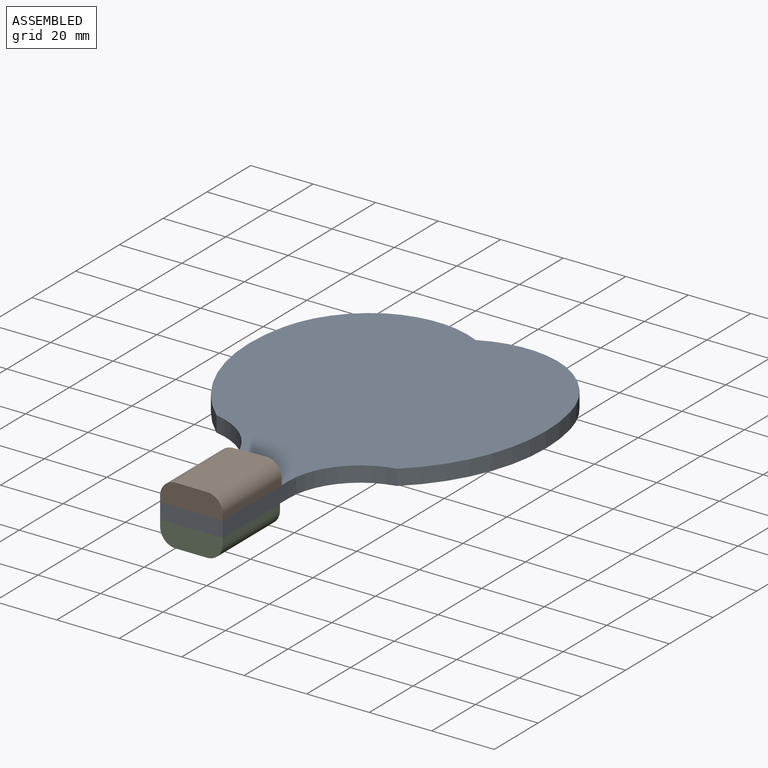
[diagram: assembled view]
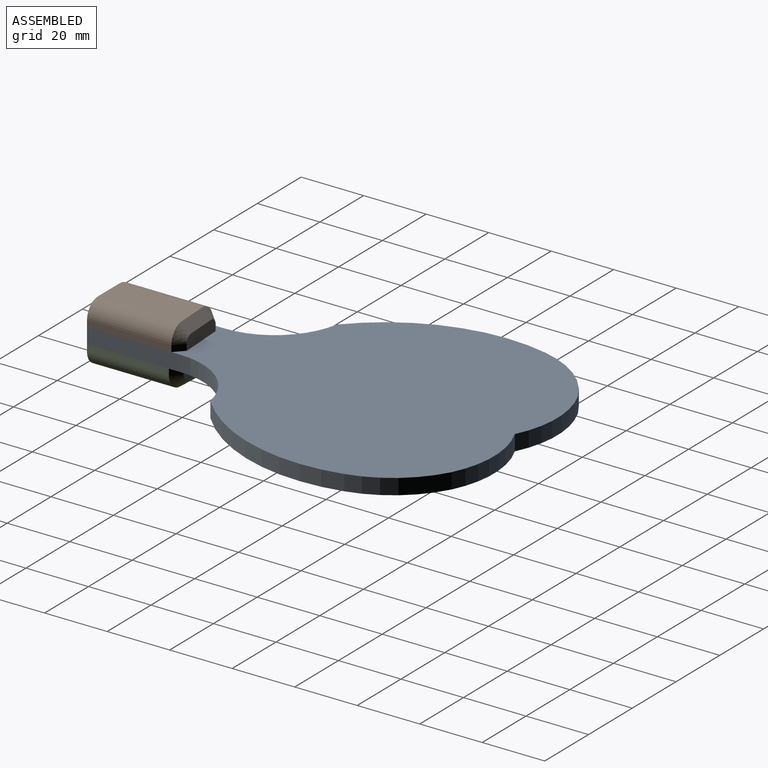
[diagram: assembled view, second angle]
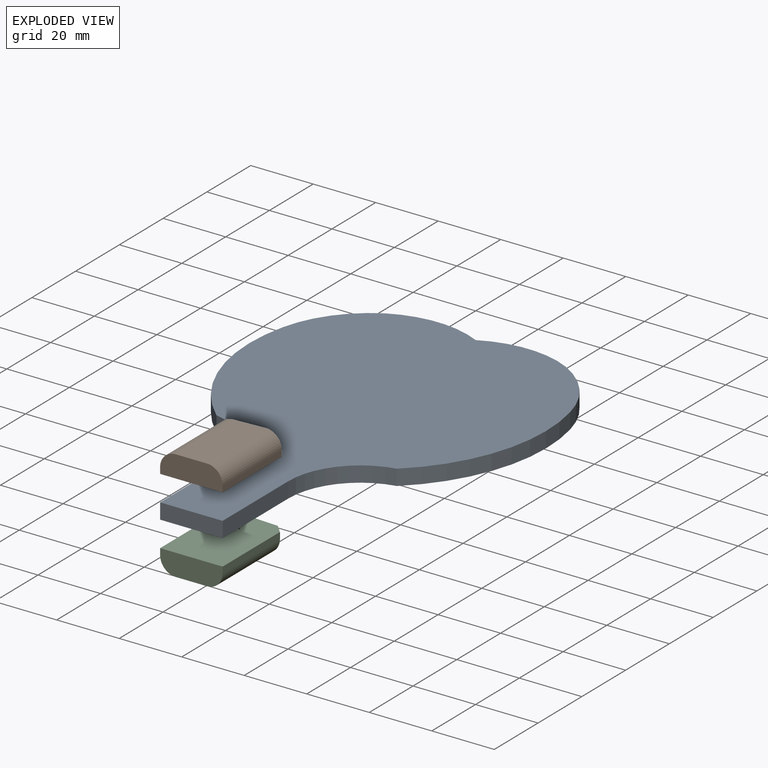
[diagram: exploded view]
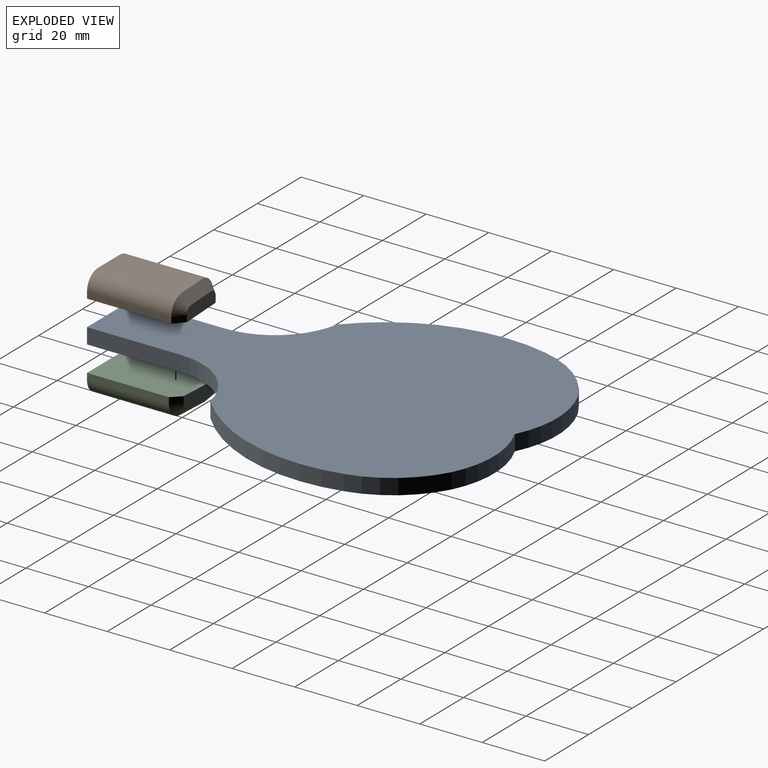
[diagram: exploded view, second angle]
ASSEMBLY  parts=3 mates=2
PART A: 13 faces, bbox 95x133.3x5 mm
  f0: plane 20x5mm, normal (0,-1,0), area 100mm2, adj f1,f10,f11,f12
  f1: plane 30x5mm, normal (1,0,0), area 150mm2, adj f0,f2,f11,f12
  f2: cylinder r=23.08mm len=22.69mm, axis (0,0,-1), area 160.1mm2, adj f1,f3,f11,f12
  f3: cylinder r=55.94mm len=54.78mm, axis (0,0,-1), area 301.3mm2, adj f2,f4,f11,f12
  f4: cylinder r=34.28mm len=22.41mm, axis (0,0,-1), area 145.2mm2, adj f3,f5,f11,f12
  f5: cylinder r=32.01mm len=28.87mm, axis (0,0,-1), area 149.7mm2, adj f4,f6,f11,f12
  f6: cylinder r=32.01mm len=28.87mm, axis (0,0,-1), area 149.7mm2, adj f5,f7,f11,f12
  f7: cylinder r=34.28mm len=22.41mm, axis (0,0,-1), area 145.2mm2, adj f6,f8,f11,f12
  f8: cylinder r=55.94mm len=54.78mm, axis (0,0,-1), area 301.3mm2, adj f7,f9,f11,f12
  f9: cylinder r=23.08mm len=22.69mm, axis (0,0,-1), area 160.1mm2, adj f8,f10,f11,f12
  f10: plane 30x5mm, normal (-1,0,0), area 150mm2, adj f0,f9,f11,f12
  f11: plane 133.33x95mm, normal (0,0,1), area 7905.2mm2, adj f0,f1,f2,f3,f4,f5,f6,f7
  f12: plane 133.33x95mm, normal (0,0,-1), area 7905.2mm2, adj f0,f1,f2,f3,f4,f5,f6,f7
PART B: 13 faces, bbox 20x29.8x7 mm
  f0: plane 27x2mm, normal (1,0,0), area 54mm2, adj f3,f5,f7,f8
  f1: plane 14.34x4.17mm, normal (-0.06,1,0), area 57.7mm2, adj f5,f8,f9,f10,f11,f12
  f2: plane 26.2x2mm, normal (-1,0,0), area 52.4mm2, adj f3,f5,f6,f12
  f3: plane 20x7mm, normal (0,-1,0), area 129.3mm2, adj f0,f2,f4,f5,f6,f7
  f4: plane 26.88x10mm, normal (0,0,1), area 266mm2, adj f3,f6,f7,f10
  f5: plane 29.83x20mm, normal (0,0,-1), area 580.8mm2, adj f0,f1,f2,f3,f8,f12
  f6: cylinder r=5mm len=26.32mm, axis (0,1,0), area 206.3mm2, adj f2,f3,f4,f11
  f7: cylinder r=5mm len=27mm, axis (0,-1,0), area 211.6mm2, adj f0,f3,f4,f9
  f8: plane 3x2.83mm, normal (0.69,0.73,0), area 8.2mm2, adj f0,f1,f5,f9
  f9: bspline ~5.16x5.01mm, area 23mm2, adj f1,f7,f8,f10
  f10: plane 10.16x3.39mm, normal (-0.04,0.71,0.71), area 40.2mm2, adj f1,f4,f9,f11
  f11: bspline ~5.01x5.01mm, area 22.2mm2, adj f1,f6,f10,f12
  f12: plane 2.83x2.68mm, normal (-0.73,0.69,0), area 7.8mm2, adj f1,f2,f5,f11
PART C: same geometry as B
PLACE A t=(-21.67,7.83,-1.71)mm
PLACE B t=(-1.67,7.83,-1.71)mm
PLACE C rot(axis=(0,1,0),180deg) t=(-41.67,7.83,3.29)mm
MATE fastened C.f5 <-> A.f12  axis (0,0,-1) through (-11.67,-64.64,-1.71)mm
MATE fastened B.f5 <-> A.f11  axis (0,0,1) through (-31.67,-64.64,3.29)mm
